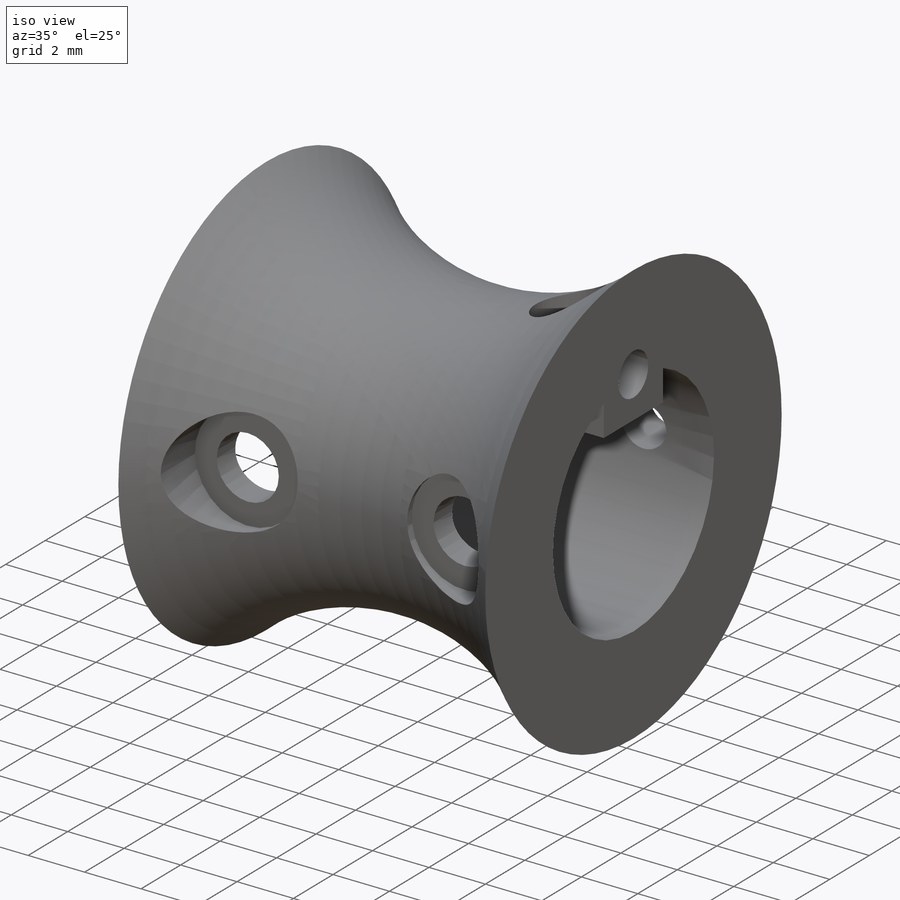
[diagram: iso view]
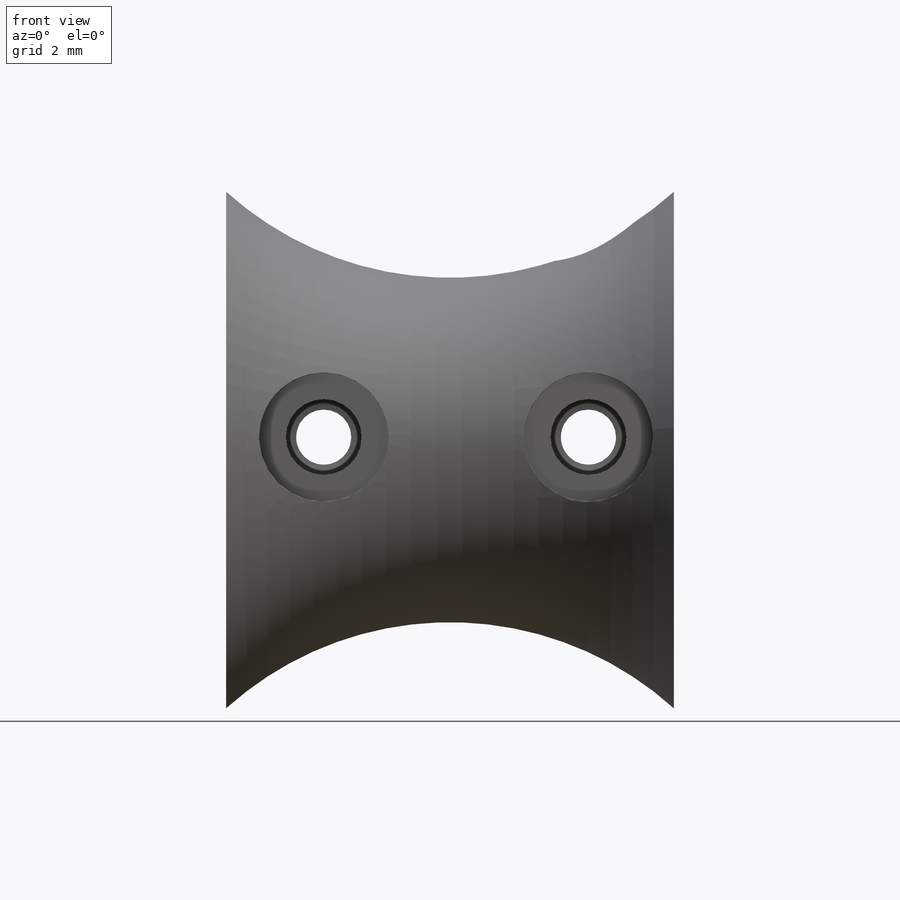
[diagram: front view]
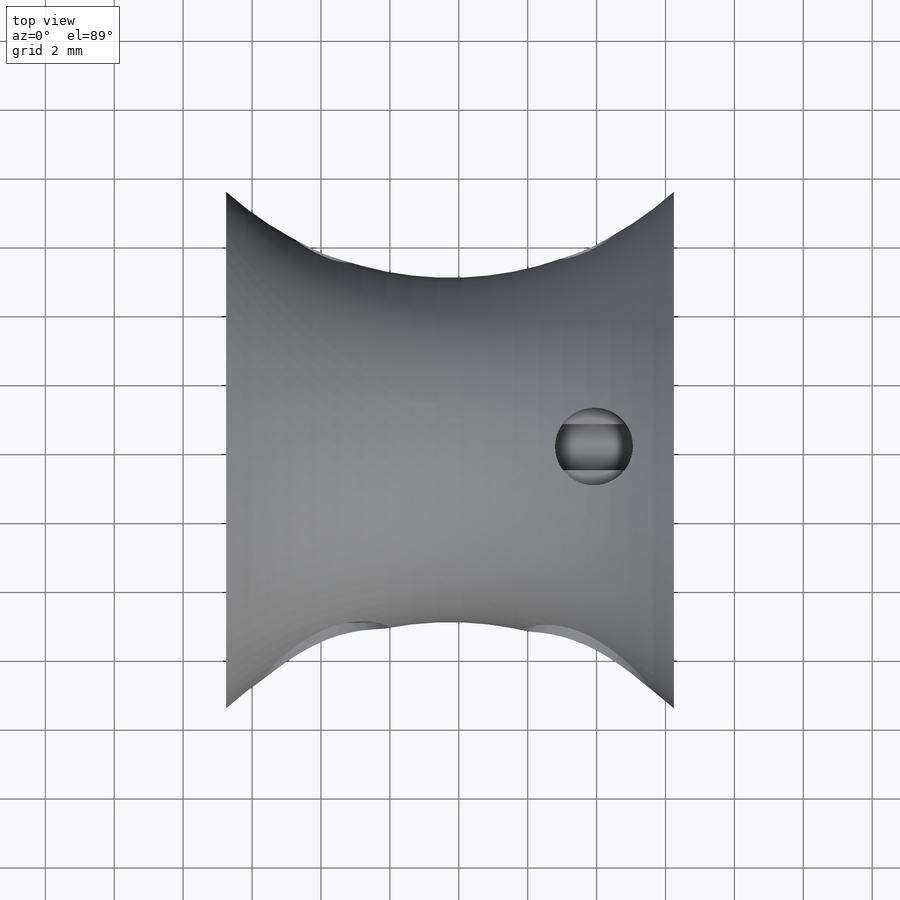
[diagram: top view]
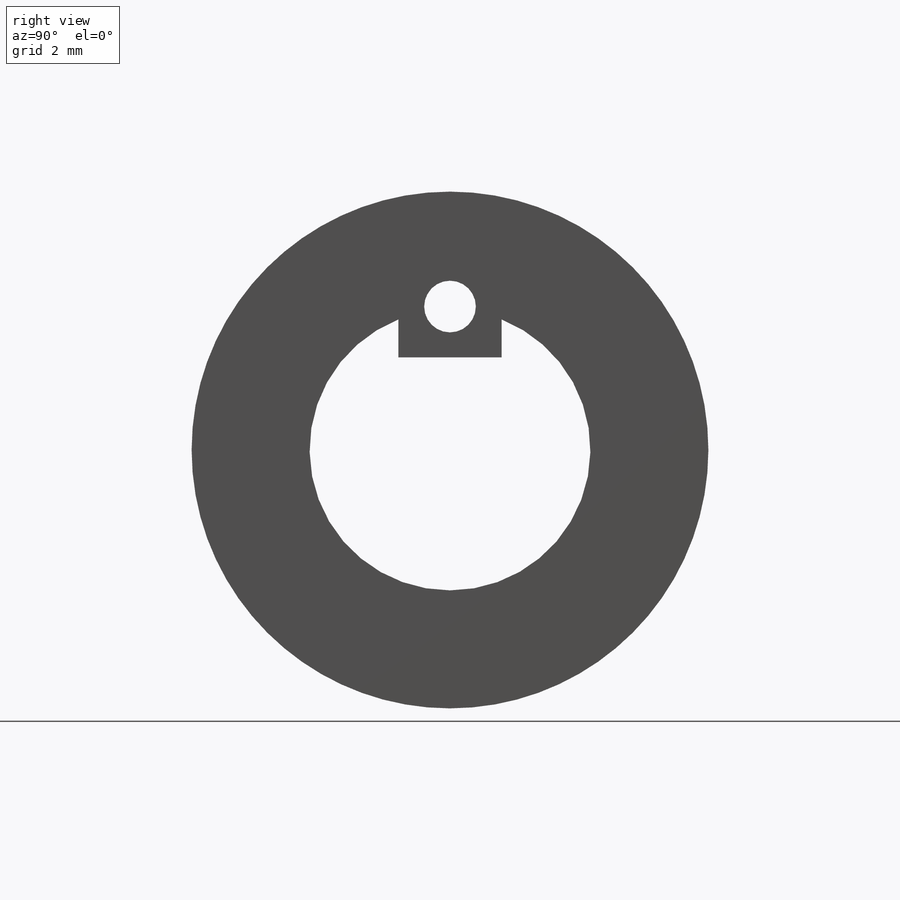
[diagram: right view]
SOLIDWORKS PART (.sldprt)
format: sldprt  version: not decoded by parser v0  size: 324,608 bytes
history: native  units: mm
features: sketch x8, cut_extrude x7, plane x2, material x1, revolve x1 (+13 scaffold rows collapsed)
feature tree (32):
  scaffold x13  (default folders/planes/origin — collapsed)
  material  "Material <not specified>"
  sketch  "Sketch1"  dims[c1.D1=~71.930348mm c1.D3=~7.767299mm c2.D1=13.0mm c2.D2=7.5mm c2.D3=5.0mm c2.D4=~0.20844mm]
  revolve  "Revolve1"  Angle=360deg
  plane  "Plane1"
  sketch  "Sketch2"  dims[D3=4.075mm D1=3.0mm D2=0.1mm D4=1.0mm]
  cut_extrude  "Cut-Extrude1"  [1 undecoded]
  sketch  "Sketch3"  dims[D1=1.5mm]
  cut_extrude  "cable hole"  [1 undecoded]
  sketch  "Sketch4"  dims[D1=~0.135491mm]
  cut_extrude  "5-40 set screw hole"  Depth=3mm
  plane  "Plane2"  Offset=7.5mm
  sketch  "Sketch6"  dims[D1=1.6mm]
  cut_extrude  "M2 X 0.4 screw hole"  [1 undecoded]
  sketch  "Sketch7"  dims[D1=2.2mm]
  cut_extrude  "hole for cap screw"  Depth=5mm
  sketch  "Sketch8"  dims[D1=3.75mm]
  cut_extrude  "Cut-Extrude6"  Depth=2.5mm
  sketch  "Sketch9"  dims[D1=~13.563575mm D2=~28.138969mm]
  cut_extrude  "Cut-Extrude7"  [1 undecoded]
decode coverage: 12 of 16 modeling features carry decoded parameters
note: ~ marks probable driven/reference dimensions
note: 4 parameter values undecoded
summary: no parameter record found for 4 features
note: suppression state not decoded; provenance and decode notes live in map.json
